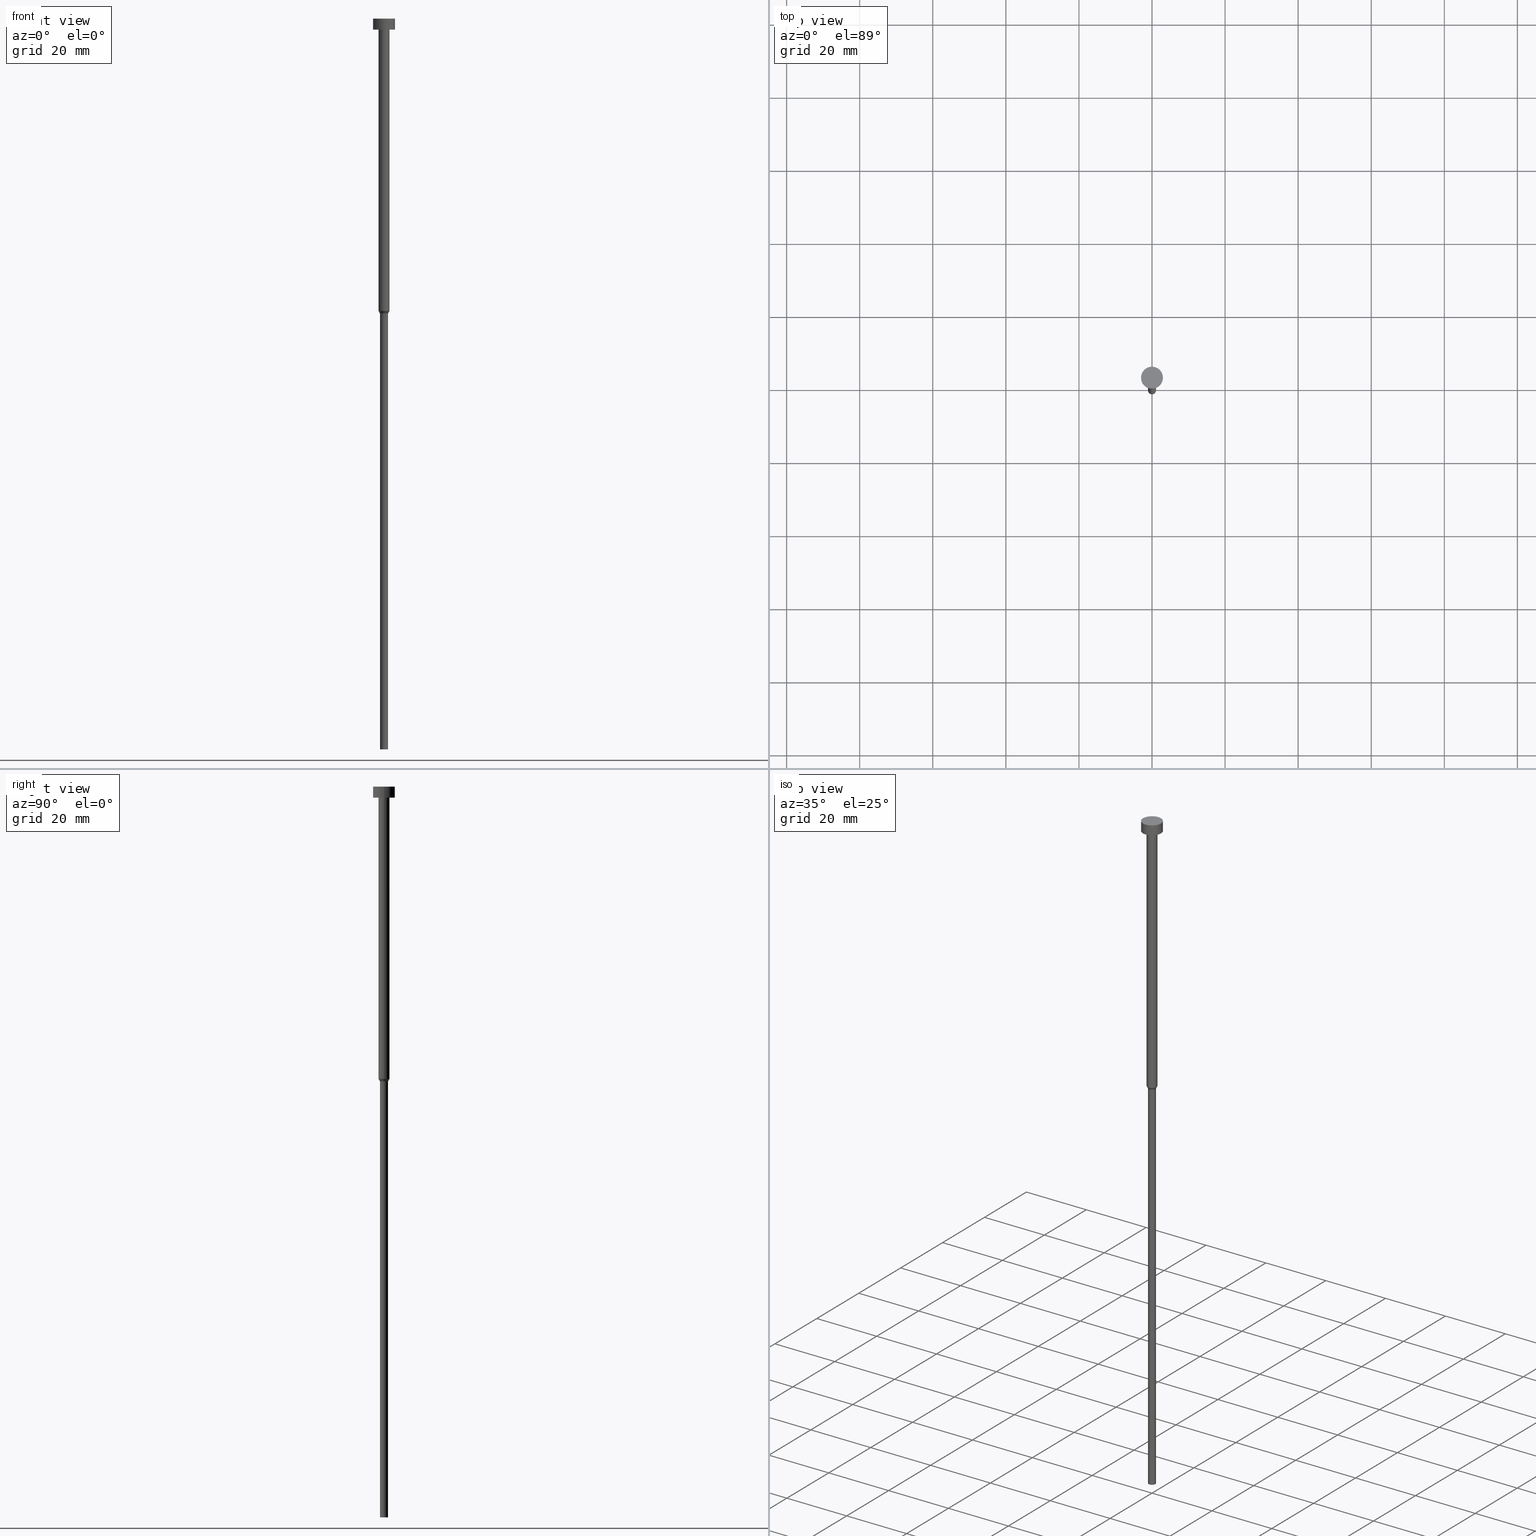
[diagram: canonical four-view strip — front | top / right | iso, engineering-drawing reading convention]
A machine part, canonical four-view strip (front | top / right | iso — engineering-drawing reading convention). The complete STEP part file that produces these views, byte-faithful:
ISO-10303-21;
HEADER;
FILE_DESCRIPTION (( 'STEP AP203' ),
    '1' );
FILE_NAME ('a2e5.STEP',
    '2023-02-13T09:03:09',
    ( '' ),
    ( '' ),
    'SwSTEP 2.0',
    'SolidWorks 2019',
    '' );
FILE_SCHEMA (( 'CONFIG_CONTROL_DESIGN' ));
ENDSEC;

DATA;
#1 = CIRCLE ( 'NONE', #33, 1.500000000000000000 ) ;
#2 = DESIGN_CONTEXT ( 'detailed design', #47, 'design' ) ;
#3 = CIRCLE ( 'NONE', #343, 1.500000000000000000 ) ;
#4 = DIRECTION ( 'NONE',  ( -0.000000000000000000, -0.000000000000000000, 1.000000000000000000 ) ) ;
#5 = FACE_BOUND ( 'NONE', #214, .T. ) ;
#6 = DIRECTION ( 'NONE',  ( -0.000000000000000000, -0.000000000000000000, 1.000000000000000000 ) ) ;
#7 = FACE_OUTER_BOUND ( 'NONE', #10, .T. ) ;
#8 = APPLICATION_PROTOCOL_DEFINITION ( 'international standard', 'config_control_design', 1994, #47 ) ;
#9 = CARTESIAN_POINT ( 'NONE',  ( 0.000000000000000000, 0.000000000000000000, -200.0000000000000000 ) ) ;
#10 = EDGE_LOOP ( 'NONE', ( #240, #185 ) ) ;
#11 = ORIENTED_EDGE ( 'NONE', *, *, #271, .T. ) ;
#12 = AXIS2_PLACEMENT_3D ( 'NONE', #246, #174, #254 ) ;
#13 = DATE_AND_TIME ( #123, #146 ) ;
#14 = EDGE_LOOP ( 'NONE', ( #89, #152, #335, #333 ) ) ;
#15 = PERSON ( 'NEUR�EN�', 'NEUR�EN�', 'NEUR�EN�', ('NEUR�EN�'), ('NEUR�EN�'), ('NEUR�EN�') ) ;
#16 = ORIENTED_EDGE ( 'NONE', *, *, #241, .T. ) ;
#17 = PERSON_AND_ORGANIZATION_ROLE ( 'creator' ) ;
#18 = ORIENTED_EDGE ( 'NONE', *, *, #326, .F. ) ;
#19 = DATE_AND_TIME ( #96, #221 ) ;
#20 = CARTESIAN_POINT ( 'NONE',  ( 0.000000000000000000, 0.000000000000000000, -3.673940397442059868E-16 ) ) ;
#21 = EDGE_CURVE ( 'NONE', #45, #294, #209, .T. ) ;
#22 = APPROVAL_ROLE ( '' ) ;
#23 = ORIENTED_EDGE ( 'NONE', *, *, #322, .F. ) ;
#24 = DIRECTION ( 'NONE',  ( 0.000000000000000000, 0.000000000000000000, -1.000000000000000000 ) ) ;
#25 = AXIS2_PLACEMENT_3D ( 'NONE', #28, #24, #170 ) ;
#26 = AXIS2_PLACEMENT_3D ( 'NONE', #273, #296, #329 ) ;
#27 = CARTESIAN_POINT ( 'NONE',  ( 0.000000000000000000, 0.000000000000000000, -200.0000000000000000 ) ) ;
#28 = CARTESIAN_POINT ( 'NONE',  ( 0.000000000000000000, -3.000000000000000000, -3.000000000000000888 ) ) ;
#29 = DIRECTION ( 'NONE',  ( 1.000000000000000000, 0.000000000000000000, 0.000000000000000000 ) ) ;
#30 = VECTOR ( 'NONE', #132, 1000.000000000000000 ) ;
#31 = AXIS2_PLACEMENT_3D ( 'NONE', #118, #337, #179 ) ;
#32 = DIRECTION ( 'NONE',  ( -0.000000000000000000, -0.000000000000000000, 1.000000000000000000 ) ) ;
#33 = AXIS2_PLACEMENT_3D ( 'NONE', #195, #247, #327 ) ;
#34 = CYLINDRICAL_SURFACE ( 'NONE', #286, 1.500000000000000000 ) ;
#35 = CC_DESIGN_APPROVAL ( #133, ( #142 ) ) ;
#36 = CARTESIAN_POINT ( 'NONE',  ( 0.000000000000000000, 0.000000000000000000, -80.00000000000000000 ) ) ;
#37 = FACE_OUTER_BOUND ( 'NONE', #14, .T. ) ;
#38 = ADVANCED_FACE ( 'NONE', ( #43 ), #163, .T. ) ;
#39 = APPROVAL_PERSON_ORGANIZATION ( #228, #187, #22 ) ;
#40 = PERSON_AND_ORGANIZATION ( #15, #304 ) ;
#41 = LINE ( 'NONE', #341, #210 ) ;
#42 = ORIENTED_EDGE ( 'NONE', *, *, #218, .T. ) ;
#43 = FACE_OUTER_BOUND ( 'NONE', #320, .T. ) ;
#44 = AXIS2_PLACEMENT_3D ( 'NONE', #175, #54, #88 ) ;
#45 = VERTEX_POINT ( 'NONE', #216 ) ;
#46 = LINE ( 'NONE', #258, #161 ) ;
#47 = APPLICATION_CONTEXT ( 'configuration controlled 3d designs of mechanical parts and assemblies' ) ;
#48 = DIRECTION ( 'NONE',  ( 0.5000000000000026645, 0.000000000000000000, 0.8660254037844371533 ) ) ;
#49 = CARTESIAN_POINT ( 'NONE',  ( -3.000000000000000000, 3.673940397442059868E-16, -3.673940397442059868E-16 ) ) ;
#50 = CARTESIAN_POINT ( 'NONE',  ( -3.000000000000000000, 3.673940397442059868E-16, -3.000000000000000888 ) ) ;
#51 = EDGE_CURVE ( 'NONE', #263, #178, #309, .T. ) ;
#52 = LINE ( 'NONE', #78, #243 ) ;
#53 = AXIS2_PLACEMENT_3D ( 'NONE', #9, #276, #225 ) ;
#54 = DIRECTION ( 'NONE',  ( -0.000000000000000000, -0.000000000000000000, 1.000000000000000000 ) ) ;
#55 = APPROVAL ( #232, 'NEUR�EN�' ) ;
#56 = CARTESIAN_POINT ( 'NONE',  ( 0.000000000000000000, 0.000000000000000000, -3.673940397442059868E-16 ) ) ;
#57 = CARTESIAN_POINT ( 'NONE',  ( -1.100000000000000089, 1.347111479062088503E-16, 0.000000000000000000 ) ) ;
#58 = ORIENTED_EDGE ( 'NONE', *, *, #226, .T. ) ;
#59 = PERSON_AND_ORGANIZATION ( #15, #304 ) ;
#60 = ORIENTED_EDGE ( 'NONE', *, *, #266, .T. ) ;
#61 =( NAMED_UNIT ( * ) SI_UNIT ( $, .STERADIAN. ) SOLID_ANGLE_UNIT ( ) );
#62 = EDGE_CURVE ( 'NONE', #106, #160, #336, .T. ) ;
#63 = ORIENTED_EDGE ( 'NONE', *, *, #271, .F. ) ;
#64 = PERSON_AND_ORGANIZATION ( #15, #304 ) ;
#65 = CC_DESIGN_PERSON_AND_ORGANIZATION_ASSIGNMENT ( #40, #17, ( #142 ) ) ;
#66 = AXIS2_PLACEMENT_3D ( 'NONE', #316, #68, #100 ) ;
#67 = SHAPE_DEFINITION_REPRESENTATION ( #147, #306 ) ;
#68 = DIRECTION ( 'NONE',  ( -0.000000000000000000, -0.000000000000000000, 1.000000000000000000 ) ) ;
#69 = DATE_TIME_ROLE ( 'creation_date' ) ;
#70 = EDGE_LOOP ( 'NONE', ( #102, #281 ) ) ;
#71 = ORIENTED_EDGE ( 'NONE', *, *, #135, .F. ) ;
#72 = EDGE_CURVE ( 'NONE', #294, #347, #165, .T. ) ;
#73 = DIRECTION ( 'NONE',  ( -0.000000000000000000, -0.000000000000000000, 1.000000000000000000 ) ) ;
#74 = CONICAL_SURFACE ( 'NONE', #31, 1.500000000000000000, 0.5235987755983019243 ) ;
#75 = CARTESIAN_POINT ( 'NONE',  ( 0.000000000000000000, 0.000000000000000000, 0.000000000000000000 ) ) ;
#76 = EDGE_CURVE ( 'NONE', #207, #319, #46, .T. ) ;
#77 = CARTESIAN_POINT ( 'NONE',  ( 0.000000000000000000, 0.000000000000000000, -3.000000000000000888 ) ) ;
#78 = CARTESIAN_POINT ( 'NONE',  ( 1.500000000000000000, 0.000000000000000000, -80.00000000000000000 ) ) ;
#79 = CIRCLE ( 'NONE', #173, 1.100000000000000089 ) ;
#80 = CYLINDRICAL_SURFACE ( 'NONE', #136, 1.100000000000000089 ) ;
#81 = MANIFOLD_SOLID_BREP ( 'Rotovat1', #153 ) ;
#82 = CC_DESIGN_PERSON_AND_ORGANIZATION_ASSIGNMENT ( #237, #101, ( #128 ) ) ;
#83 = DIRECTION ( 'NONE',  ( -0.000000000000000000, -0.000000000000000000, 1.000000000000000000 ) ) ;
#84 = PLANE ( 'NONE',  #25 ) ;
#85 = CC_DESIGN_APPROVAL ( #55, ( #128 ) ) ;
#86 = MECHANICAL_CONTEXT ( 'NONE', #282, 'mechanical' ) ;
#87 = ORIENTED_EDGE ( 'NONE', *, *, #322, .T. ) ;
#88 = DIRECTION ( 'NONE',  ( 1.000000000000000000, 0.000000000000000000, 0.000000000000000000 ) ) ;
#89 = ORIENTED_EDGE ( 'NONE', *, *, #325, .T. ) ;
#90 = CARTESIAN_POINT ( 'NONE',  ( -1.500000000000000000, 1.836970198721029934E-16, -3.000000000000000888 ) ) ;
#91 = ORIENTED_EDGE ( 'NONE', *, *, #145, .T. ) ;
#92 = AXIS2_PLACEMENT_3D ( 'NONE', #77, #4, #140 ) ;
#93 = AXIS2_PLACEMENT_3D ( 'NONE', #36, #6, #201 ) ;
#94 = EDGE_CURVE ( 'NONE', #222, #347, #199, .T. ) ;
#95 = CARTESIAN_POINT ( 'NONE',  ( 0.000000000000000000, 0.000000000000000000, -80.00000000000000000 ) ) ;
#96 = CALENDAR_DATE ( 2023, 13, 2 ) ;
#97 = ORIENTED_EDGE ( 'NONE', *, *, #117, .T. ) ;
#98 = COORDINATED_UNIVERSAL_TIME_OFFSET ( 1, 0, .AHEAD. ) ;
#99 = AXIS2_PLACEMENT_3D ( 'NONE', #250, #198, #138 ) ;
#100 = DIRECTION ( 'NONE',  ( 1.000000000000000000, 0.000000000000000000, 0.000000000000000000 ) ) ;
#101 = PERSON_AND_ORGANIZATION_ROLE ( 'classification_officer' ) ;
#102 = ORIENTED_EDGE ( 'NONE', *, *, #51, .T. ) ;
#103 = ORIENTED_EDGE ( 'NONE', *, *, #325, .F. ) ;
#104 = CC_DESIGN_PERSON_AND_ORGANIZATION_ASSIGNMENT ( #130, #157, ( #142 ) ) ;
#105 = DATE_AND_TIME ( #181, #204 ) ;
#106 = VERTEX_POINT ( 'NONE', #182 ) ;
#107 = CARTESIAN_POINT ( 'NONE',  ( 0.000000000000000000, 0.000000000000000000, 0.000000000000000000 ) ) ;
#108 = FACE_OUTER_BOUND ( 'NONE', #256, .T. ) ;
#109 = CARTESIAN_POINT ( 'NONE',  ( 1.500000000000000000, 0.000000000000000000, -3.000000000000000888 ) ) ;
#110 = PRODUCT_DEFINITION ( 'NEZN�M�', '', #142, #2 ) ;
#111 = CIRCLE ( 'NONE', #154, 1.100000000000000089 ) ;
#112 = CYLINDRICAL_SURFACE ( 'NONE', #26, 1.100000000000000089 ) ;
#113 = CARTESIAN_POINT ( 'NONE',  ( 1.500000000000000000, 0.000000000000000000, -80.00000000000000000 ) ) ;
#114 = PLANE ( 'NONE',  #53 ) ;
#115 = AXIS2_PLACEMENT_3D ( 'NONE', #56, #308, #119 ) ;
#116 = DIRECTION ( 'NONE',  ( 1.000000000000000000, 0.000000000000000000, 0.000000000000000000 ) ) ;
#117 = EDGE_CURVE ( 'NONE', #150, #222, #41, .T. ) ;
#118 = CARTESIAN_POINT ( 'NONE',  ( 0.000000000000000000, 0.000000000000000000, -80.00000000000000000 ) ) ;
#119 = DIRECTION ( 'NONE',  ( 1.000000000000000000, 0.000000000000000000, 0.000000000000000000 ) ) ;
#120 = ORIENTED_EDGE ( 'NONE', *, *, #76, .T. ) ;
#121 = CARTESIAN_POINT ( 'NONE',  ( 0.000000000000000000, 0.000000000000000000, 0.000000000000000000 ) ) ;
#122 = ORIENTED_EDGE ( 'NONE', *, *, #21, .T. ) ;
#123 = CALENDAR_DATE ( 2023, 13, 2 ) ;
#124 = VERTEX_POINT ( 'NONE', #192 ) ;
#125 = CALENDAR_DATE ( 2023, 13, 2 ) ;
#126 = DIRECTION ( 'NONE',  ( -0.000000000000000000, -0.000000000000000000, 1.000000000000000000 ) ) ;
#127 = ADVANCED_FACE ( 'NONE', ( #108 ), #270, .T. ) ;
#128 = SECURITY_CLASSIFICATION ( '', '', #208 ) ;
#129 = ORIENTED_EDGE ( 'NONE', *, *, #139, .T. ) ;
#130 = PERSON_AND_ORGANIZATION ( #15, #304 ) ;
#131 = CARTESIAN_POINT ( 'NONE',  ( 0.000000000000000000, 0.000000000000000000, -3.000000000000000888 ) ) ;
#132 = DIRECTION ( 'NONE',  ( -0.000000000000000000, -0.000000000000000000, 1.000000000000000000 ) ) ;
#133 = APPROVAL ( #262, 'NEUR�EN�' ) ;
#134 = FACE_OUTER_BOUND ( 'NONE', #70, .T. ) ;
#135 = EDGE_CURVE ( 'NONE', #160, #106, #191, .T. ) ;
#136 = AXIS2_PLACEMENT_3D ( 'NONE', #107, #141, #269 ) ;
#137 = CIRCLE ( 'NONE', #115, 3.000000000000000000 ) ;
#138 = DIRECTION ( 'NONE',  ( 1.000000000000000000, 0.000000000000000000, 0.000000000000000000 ) ) ;
#139 = EDGE_CURVE ( 'NONE', #347, #222, #1, .T. ) ;
#140 = DIRECTION ( 'NONE',  ( 1.000000000000000000, 0.000000000000000000, 0.000000000000000000 ) ) ;
#141 = DIRECTION ( 'NONE',  ( -0.000000000000000000, -0.000000000000000000, 1.000000000000000000 ) ) ;
#142 = PRODUCT_DEFINITION_FORMATION_WITH_SPECIFIED_SOURCE ( 'LIBOVOLN�', '', #156, .NOT_KNOWN. ) ;
#143 = FACE_OUTER_BOUND ( 'NONE', #213, .T. ) ;
#144 = DIRECTION ( 'NONE',  ( 1.000000000000000000, 0.000000000000000000, 0.000000000000000000 ) ) ;
#145 = EDGE_CURVE ( 'NONE', #160, #178, #300, .T. ) ;
#146 = LOCAL_TIME ( 10, 3, 9.000000000000000000, #290 ) ;
#147 = PRODUCT_DEFINITION_SHAPE ( 'NONE', 'NONE',  #110 ) ;
#148 = ADVANCED_FACE ( 'NONE', ( #5, #143 ), #84, .T. ) ;
#149 = DIRECTION ( 'NONE',  ( -0.000000000000000000, -0.000000000000000000, 1.000000000000000000 ) ) ;
#150 = VERTEX_POINT ( 'NONE', #113 ) ;
#151 = DIRECTION ( 'NONE',  ( -0.000000000000000000, -0.000000000000000000, 1.000000000000000000 ) ) ;
#152 = ORIENTED_EDGE ( 'NONE', *, *, #72, .T. ) ;
#153 = CLOSED_SHELL ( 'NONE', ( #38, #307, #344, #227, #354, #236, #302, #277, #148, #127, #168 ) ) ;
#154 = AXIS2_PLACEMENT_3D ( 'NONE', #27, #32, #217 ) ;
#155 = EDGE_LOOP ( 'NONE', ( #11, #122, #103, #238 ) ) ;
#156 = PRODUCT ( 'a2e5', 'a2e5', '', ( #86 ) ) ;
#157 = PERSON_AND_ORGANIZATION_ROLE ( 'design_supplier' ) ;
#158 = ORIENTED_EDGE ( 'NONE', *, *, #76, .F. ) ;
#159 = PERSON_AND_ORGANIZATION ( #15, #304 ) ;
#160 = VERTEX_POINT ( 'NONE', #50 ) ;
#161 = VECTOR ( 'NONE', #233, 1000.000000000000000 ) ;
#162 = COORDINATED_UNIVERSAL_TIME_OFFSET ( 1, 0, .AHEAD. ) ;
#163 = CYLINDRICAL_SURFACE ( 'NONE', #242, 3.000000000000000000 ) ;
#164 = PERSON_AND_ORGANIZATION ( #15, #304 ) ;
#165 = LINE ( 'NONE', #267, #30 ) ;
#166 = CARTESIAN_POINT ( 'NONE',  ( 1.100000000000000089, 0.000000000000000000, -200.0000000000000000 ) ) ;
#167 = CARTESIAN_POINT ( 'NONE',  ( 3.000000000000000000, 0.000000000000000000, 0.000000000000000000 ) ) ;
#168 = ADVANCED_FACE ( 'NONE', ( #134 ), #190, .T. ) ;
#169 = AXIS2_PLACEMENT_3D ( 'NONE', #121, #230, #338 ) ;
#170 = DIRECTION ( 'NONE',  ( -1.000000000000000000, 0.000000000000000000, -0.000000000000000000 ) ) ;
#171 = FACE_OUTER_BOUND ( 'NONE', #212, .T. ) ;
#172 = DIRECTION ( 'NONE',  ( 1.000000000000000000, 0.000000000000000000, 0.000000000000000000 ) ) ;
#173 = AXIS2_PLACEMENT_3D ( 'NONE', #196, #301, #172 ) ;
#174 = DIRECTION ( 'NONE',  ( -0.000000000000000000, -0.000000000000000000, 1.000000000000000000 ) ) ;
#175 = CARTESIAN_POINT ( 'NONE',  ( 0.000000000000000000, 0.000000000000000000, -80.00000000000000000 ) ) ;
#176 = ORIENTED_EDGE ( 'NONE', *, *, #135, .T. ) ;
#177 = CC_DESIGN_PERSON_AND_ORGANIZATION_ASSIGNMENT ( #59, #200, ( #156 ) ) ;
#178 = VERTEX_POINT ( 'NONE', #49 ) ;
#179 = DIRECTION ( 'NONE',  ( 1.000000000000000000, 0.000000000000000000, 0.000000000000000000 ) ) ;
#180 = APPROVAL_PERSON_ORGANIZATION ( #164, #55, #314 ) ;
#181 = CALENDAR_DATE ( 2023, 13, 2 ) ;
#182 = CARTESIAN_POINT ( 'NONE',  ( 3.000000000000000000, 0.000000000000000000, -3.000000000000000888 ) ) ;
#183 = COORDINATED_UNIVERSAL_TIME_OFFSET ( 1, 0, .AHEAD. ) ;
#184 = ORIENTED_EDGE ( 'NONE', *, *, #145, .F. ) ;
#185 = ORIENTED_EDGE ( 'NONE', *, *, #266, .F. ) ;
#186 = AXIS2_PLACEMENT_3D ( 'NONE', #20, #295, #289 ) ;
#187 = APPROVAL ( #334, 'NEUR�EN�' ) ;
#188 = DIRECTION ( 'NONE',  ( 1.000000000000000000, 0.000000000000000000, 0.000000000000000000 ) ) ;
#189 = ORIENTED_EDGE ( 'NONE', *, *, #51, .F. ) ;
#190 = PLANE ( 'NONE',  #297 ) ;
#191 = CIRCLE ( 'NONE', #92, 3.000000000000000000 ) ;
#192 = CARTESIAN_POINT ( 'NONE',  ( -1.100000000000000089, 1.347111479062088503E-16, -200.0000000000000000 ) ) ;
#193 = AXIS2_PLACEMENT_3D ( 'NONE', #268, #274, #245 ) ;
#194 = APPROVAL_PERSON_ORGANIZATION ( #159, #133, #339 ) ;
#195 = CARTESIAN_POINT ( 'NONE',  ( 0.000000000000000000, 0.000000000000000000, -3.000000000000000888 ) ) ;
#196 = CARTESIAN_POINT ( 'NONE',  ( 0.000000000000000000, 0.000000000000000000, -200.0000000000000000 ) ) ;
#197 = CC_DESIGN_DATE_AND_TIME_ASSIGNMENT ( #105, #69, ( #110 ) ) ;
#198 = DIRECTION ( 'NONE',  ( -0.000000000000000000, -0.000000000000000000, 1.000000000000000000 ) ) ;
#199 = CIRCLE ( 'NONE', #66, 1.500000000000000000 ) ;
#200 = PERSON_AND_ORGANIZATION_ROLE ( 'design_owner' ) ;
#201 = DIRECTION ( 'NONE',  ( 1.000000000000000000, 0.000000000000000000, 0.000000000000000000 ) ) ;
#202 = ORIENTED_EDGE ( 'NONE', *, *, #226, .F. ) ;
#203 =( LENGTH_UNIT ( ) NAMED_UNIT ( * ) SI_UNIT ( .MILLI., .METRE. ) );
#204 = LOCAL_TIME ( 10, 3, 9.000000000000000000, #239 ) ;
#205 = ORIENTED_EDGE ( 'NONE', *, *, #62, .T. ) ;
#206 = LINE ( 'NONE', #57, #317 ) ;
#207 = VERTEX_POINT ( 'NONE', #166 ) ;
#208 = SECURITY_CLASSIFICATION_LEVEL ( 'unclassified' ) ;
#209 = LINE ( 'NONE', #291, #349 ) ;
#210 = VECTOR ( 'NONE', #330, 1000.000000000000000 ) ;
#211 = DATE_AND_TIME ( #125, #293 ) ;
#212 = EDGE_LOOP ( 'NONE', ( #18, #60, #120, #278 ) ) ;
#213 = EDGE_LOOP ( 'NONE', ( #312, #71 ) ) ;
#214 = EDGE_LOOP ( 'NONE', ( #234, #129 ) ) ;
#215 = CIRCLE ( 'NONE', #93, 1.500000000000000000 ) ;
#216 = CARTESIAN_POINT ( 'NONE',  ( -1.100000000000000089, 1.347111479062088503E-16, -80.69282032302754715 ) ) ;
#217 = DIRECTION ( 'NONE',  ( 1.000000000000000000, 0.000000000000000000, 0.000000000000000000 ) ) ;
#218 = EDGE_CURVE ( 'NONE', #319, #150, #52, .T. ) ;
#219 = DIRECTION ( 'NONE',  ( 0.000000000000000000, -0.000000000000000000, 1.000000000000000000 ) ) ;
#220 = LINE ( 'NONE', #167, #342 ) ;
#221 = LOCAL_TIME ( 10, 3, 9.000000000000000000, #162 ) ;
#222 = VERTEX_POINT ( 'NONE', #109 ) ;
#223 = DIRECTION ( 'NONE',  ( 1.000000000000000000, 0.000000000000000000, 0.000000000000000000 ) ) ;
#224 = CYLINDRICAL_SURFACE ( 'NONE', #12, 1.500000000000000000 ) ;
#225 = DIRECTION ( 'NONE',  ( -1.000000000000000000, 0.000000000000000000, -0.000000000000000000 ) ) ;
#226 = EDGE_CURVE ( 'NONE', #106, #263, #220, .T. ) ;
#227 = ADVANCED_FACE ( 'NONE', ( #353 ), #80, .T. ) ;
#228 = PERSON_AND_ORGANIZATION ( #15, #304 ) ;
#229 = FACE_OUTER_BOUND ( 'NONE', #155, .T. ) ;
#230 = DIRECTION ( 'NONE',  ( 0.000000000000000000, 0.000000000000000000, 1.000000000000000000 ) ) ;
#231 = ORIENTED_EDGE ( 'NONE', *, *, #313, .F. ) ;
#232 = APPROVAL_STATUS ( 'not_yet_approved' ) ;
#233 = DIRECTION ( 'NONE',  ( -0.000000000000000000, -0.000000000000000000, 1.000000000000000000 ) ) ;
#234 = ORIENTED_EDGE ( 'NONE', *, *, #94, .T. ) ;
#235 = EDGE_CURVE ( 'NONE', #45, #319, #285, .T. ) ;
#236 = ADVANCED_FACE ( 'NONE', ( #171 ), #112, .T. ) ;
#237 = PERSON_AND_ORGANIZATION ( #15, #304 ) ;
#238 = ORIENTED_EDGE ( 'NONE', *, *, #218, .F. ) ;
#239 = COORDINATED_UNIVERSAL_TIME_OFFSET ( 1, 0, .AHEAD. ) ;
#240 = ORIENTED_EDGE ( 'NONE', *, *, #241, .F. ) ;
#241 = EDGE_CURVE ( 'NONE', #207, #124, #79, .T. ) ;
#242 = AXIS2_PLACEMENT_3D ( 'NONE', #75, #126, #265 ) ;
#243 = VECTOR ( 'NONE', #48, 1000.000000000000000 ) ;
#244 = CC_DESIGN_APPROVAL ( #187, ( #110 ) ) ;
#245 = DIRECTION ( 'NONE',  ( 1.000000000000000000, 0.000000000000000000, 0.000000000000000000 ) ) ;
#246 = CARTESIAN_POINT ( 'NONE',  ( 0.000000000000000000, 0.000000000000000000, 0.000000000000000000 ) ) ;
#247 = DIRECTION ( 'NONE',  ( -0.000000000000000000, -0.000000000000000000, 1.000000000000000000 ) ) ;
#248 = CARTESIAN_POINT ( 'NONE',  ( 0.000000000000000000, 0.000000000000000000, 0.000000000000000000 ) ) ;
#249 = LOCAL_TIME ( 10, 3, 9.000000000000000000, #183 ) ;
#250 = CARTESIAN_POINT ( 'NONE',  ( 0.000000000000000000, 0.000000000000000000, -80.69282032302754715 ) ) ;
#251 = CARTESIAN_POINT ( 'NONE',  ( 1.100000000000000089, 0.000000000000000000, -80.69282032302754715 ) ) ;
#252 = CC_DESIGN_PERSON_AND_ORGANIZATION_ASSIGNMENT ( #64, #346, ( #110 ) ) ;
#253 = AXIS2_PLACEMENT_3D ( 'NONE', #248, #83, #223 ) ;
#254 = DIRECTION ( 'NONE',  ( 1.000000000000000000, 0.000000000000000000, 0.000000000000000000 ) ) ;
#255 = CARTESIAN_POINT ( 'NONE',  ( 0.000000000000000000, 0.000000000000000000, 0.000000000000000000 ) ) ;
#256 = EDGE_LOOP ( 'NONE', ( #184, #176, #58, #231 ) ) ;
#257 = ORIENTED_EDGE ( 'NONE', *, *, #72, .F. ) ;
#258 = CARTESIAN_POINT ( 'NONE',  ( 1.100000000000000089, 0.000000000000000000, 0.000000000000000000 ) ) ;
#259 = DATE_AND_TIME ( #284, #249 ) ;
#260 = CC_DESIGN_DATE_AND_TIME_ASSIGNMENT ( #211, #315, ( #128 ) ) ;
#261 = ORIENTED_EDGE ( 'NONE', *, *, #326, .T. ) ;
#262 = APPROVAL_STATUS ( 'not_yet_approved' ) ;
#263 = VERTEX_POINT ( 'NONE', #303 ) ;
#264 = APPROVAL_DATE_TIME ( #19, #133 ) ;
#265 = DIRECTION ( 'NONE',  ( 1.000000000000000000, 0.000000000000000000, 0.000000000000000000 ) ) ;
#266 = EDGE_CURVE ( 'NONE', #124, #207, #111, .T. ) ;
#267 = CARTESIAN_POINT ( 'NONE',  ( -1.500000000000000000, 1.836970198721029934E-16, 0.000000000000000000 ) ) ;
#268 = CARTESIAN_POINT ( 'NONE',  ( 0.000000000000000000, 0.000000000000000000, -80.69282032302754715 ) ) ;
#269 = DIRECTION ( 'NONE',  ( 1.000000000000000000, 0.000000000000000000, 0.000000000000000000 ) ) ;
#270 = CYLINDRICAL_SURFACE ( 'NONE', #253, 3.000000000000000000 ) ;
#271 = EDGE_CURVE ( 'NONE', #319, #45, #350, .T. ) ;
#272 = UNCERTAINTY_MEASURE_WITH_UNIT (LENGTH_MEASURE( 1.000000000000000082E-05 ), #203, 'distance_accuracy_value', 'NONE');
#273 = CARTESIAN_POINT ( 'NONE',  ( 0.000000000000000000, 0.000000000000000000, 0.000000000000000000 ) ) ;
#274 = DIRECTION ( 'NONE',  ( -0.000000000000000000, -0.000000000000000000, 1.000000000000000000 ) ) ;
#275 =( GEOMETRIC_REPRESENTATION_CONTEXT ( 3 ) GLOBAL_UNCERTAINTY_ASSIGNED_CONTEXT ( ( #272 ) ) GLOBAL_UNIT_ASSIGNED_CONTEXT ( ( #203, #311, #61 ) ) REPRESENTATION_CONTEXT ( 'NONE', 'WORKASPACE' ) );
#276 = DIRECTION ( 'NONE',  ( 0.000000000000000000, 0.000000000000000000, -1.000000000000000000 ) ) ;
#277 = ADVANCED_FACE ( 'NONE', ( #324 ), #224, .T. ) ;
#278 = ORIENTED_EDGE ( 'NONE', *, *, #235, .F. ) ;
#279 = AXIS2_PLACEMENT_3D ( 'NONE', #131, #73, #188 ) ;
#280 = CARTESIAN_POINT ( 'NONE',  ( -1.500000000000000000, 1.836970198721029934E-16, -80.00000000000000000 ) ) ;
#281 = ORIENTED_EDGE ( 'NONE', *, *, #313, .T. ) ;
#282 = APPLICATION_CONTEXT ( 'configuration controlled 3d designs of mechanical parts and assemblies' ) ;
#283 = FACE_OUTER_BOUND ( 'NONE', #310, .T. ) ;
#284 = CALENDAR_DATE ( 2023, 13, 2 ) ;
#285 = CIRCLE ( 'NONE', #193, 1.100000000000000089 ) ;
#286 = AXIS2_PLACEMENT_3D ( 'NONE', #255, #305, #144 ) ;
#287 = DIRECTION ( 'NONE',  ( -0.5000000000000026645, 6.123233995736798083E-17, 0.8660254037844371533 ) ) ;
#288 = APPROVAL_DATE_TIME ( #259, #55 ) ;
#289 = DIRECTION ( 'NONE',  ( 1.000000000000000000, 0.000000000000000000, 0.000000000000000000 ) ) ;
#290 = COORDINATED_UNIVERSAL_TIME_OFFSET ( 1, 0, .AHEAD. ) ;
#291 = CARTESIAN_POINT ( 'NONE',  ( -1.500000000000000000, 1.836970198721029934E-16, -80.00000000000000000 ) ) ;
#292 = VECTOR ( 'NONE', #351, 1000.000000000000000 ) ;
#293 = LOCAL_TIME ( 10, 3, 9.000000000000000000, #98 ) ;
#294 = VERTEX_POINT ( 'NONE', #280 ) ;
#295 = DIRECTION ( 'NONE',  ( -0.000000000000000000, -0.000000000000000000, 1.000000000000000000 ) ) ;
#296 = DIRECTION ( 'NONE',  ( -0.000000000000000000, -0.000000000000000000, 1.000000000000000000 ) ) ;
#297 = AXIS2_PLACEMENT_3D ( 'NONE', #299, #219, #29 ) ;
#298 = CONICAL_SURFACE ( 'NONE', #44, 1.500000000000000000, 0.5235987755983019243 ) ;
#299 = CARTESIAN_POINT ( 'NONE',  ( 0.000000000000000000, 0.000000000000000000, -1.836970198721029934E-16 ) ) ;
#300 = LINE ( 'NONE', #355, #292 ) ;
#301 = DIRECTION ( 'NONE',  ( -0.000000000000000000, -0.000000000000000000, 1.000000000000000000 ) ) ;
#302 = ADVANCED_FACE ( 'NONE', ( #283 ), #74, .T. ) ;
#303 = CARTESIAN_POINT ( 'NONE',  ( 3.000000000000000000, 0.000000000000000000, -3.673940397442059868E-16 ) ) ;
#304 = ORGANIZATION ( 'NEUR�EN�', 'NEUR�EN�', '' ) ;
#305 = DIRECTION ( 'NONE',  ( -0.000000000000000000, -0.000000000000000000, 1.000000000000000000 ) ) ;
#306 = ADVANCED_BREP_SHAPE_REPRESENTATION ( 'a2e5', ( #81, #169 ), #275 ) ;
#307 = ADVANCED_FACE ( 'NONE', ( #37 ), #34, .T. ) ;
#308 = DIRECTION ( 'NONE',  ( -0.000000000000000000, -0.000000000000000000, 1.000000000000000000 ) ) ;
#309 = CIRCLE ( 'NONE', #186, 3.000000000000000000 ) ;
#310 = EDGE_LOOP ( 'NONE', ( #345, #348, #42, #23 ) ) ;
#311 =( NAMED_UNIT ( * ) PLANE_ANGLE_UNIT ( ) SI_UNIT ( $, .RADIAN. ) );
#312 = ORIENTED_EDGE ( 'NONE', *, *, #62, .F. ) ;
#313 = EDGE_CURVE ( 'NONE', #178, #263, #137, .T. ) ;
#314 = APPROVAL_ROLE ( '' ) ;
#315 = DATE_TIME_ROLE ( 'classification_date' ) ;
#316 = CARTESIAN_POINT ( 'NONE',  ( 0.000000000000000000, 0.000000000000000000, -3.000000000000000888 ) ) ;
#317 = VECTOR ( 'NONE', #151, 1000.000000000000000 ) ;
#318 = APPROVAL_DATE_TIME ( #13, #187 ) ;
#319 = VERTEX_POINT ( 'NONE', #251 ) ;
#320 = EDGE_LOOP ( 'NONE', ( #205, #91, #189, #202 ) ) ;
#321 = ORIENTED_EDGE ( 'NONE', *, *, #139, .F. ) ;
#322 = EDGE_CURVE ( 'NONE', #294, #150, #3, .T. ) ;
#323 = EDGE_LOOP ( 'NONE', ( #257, #87, #97, #321 ) ) ;
#324 = FACE_OUTER_BOUND ( 'NONE', #323, .T. ) ;
#325 = EDGE_CURVE ( 'NONE', #150, #294, #215, .T. ) ;
#326 = EDGE_CURVE ( 'NONE', #124, #45, #206, .T. ) ;
#327 = DIRECTION ( 'NONE',  ( 1.000000000000000000, 0.000000000000000000, 0.000000000000000000 ) ) ;
#328 = DIRECTION ( 'NONE',  ( -0.000000000000000000, -0.000000000000000000, 1.000000000000000000 ) ) ;
#329 = DIRECTION ( 'NONE',  ( 1.000000000000000000, 0.000000000000000000, 0.000000000000000000 ) ) ;
#330 = DIRECTION ( 'NONE',  ( -0.000000000000000000, -0.000000000000000000, 1.000000000000000000 ) ) ;
#331 = APPLICATION_PROTOCOL_DEFINITION ( 'international standard', 'config_control_design', 1994, #282 ) ;
#332 = CC_DESIGN_SECURITY_CLASSIFICATION ( #128, ( #142 ) ) ;
#333 = ORIENTED_EDGE ( 'NONE', *, *, #117, .F. ) ;
#334 = APPROVAL_STATUS ( 'not_yet_approved' ) ;
#335 = ORIENTED_EDGE ( 'NONE', *, *, #94, .F. ) ;
#336 = CIRCLE ( 'NONE', #279, 3.000000000000000000 ) ;
#337 = DIRECTION ( 'NONE',  ( -0.000000000000000000, -0.000000000000000000, 1.000000000000000000 ) ) ;
#338 = DIRECTION ( 'NONE',  ( 1.000000000000000000, 0.000000000000000000, 0.000000000000000000 ) ) ;
#339 = APPROVAL_ROLE ( '' ) ;
#340 = EDGE_LOOP ( 'NONE', ( #16, #261, #63, #158 ) ) ;
#341 = CARTESIAN_POINT ( 'NONE',  ( 1.500000000000000000, 0.000000000000000000, 0.000000000000000000 ) ) ;
#342 = VECTOR ( 'NONE', #328, 1000.000000000000000 ) ;
#343 = AXIS2_PLACEMENT_3D ( 'NONE', #95, #149, #116 ) ;
#344 = ADVANCED_FACE ( 'NONE', ( #229 ), #298, .T. ) ;
#345 = ORIENTED_EDGE ( 'NONE', *, *, #21, .F. ) ;
#346 = PERSON_AND_ORGANIZATION_ROLE ( 'creator' ) ;
#347 = VERTEX_POINT ( 'NONE', #90 ) ;
#348 = ORIENTED_EDGE ( 'NONE', *, *, #235, .T. ) ;
#349 = VECTOR ( 'NONE', #287, 1000.000000000000000 ) ;
#350 = CIRCLE ( 'NONE', #99, 1.100000000000000089 ) ;
#351 = DIRECTION ( 'NONE',  ( -0.000000000000000000, -0.000000000000000000, 1.000000000000000000 ) ) ;
#352 = PRODUCT_RELATED_PRODUCT_CATEGORY ( 'detail', '', ( #156 ) ) ;
#353 = FACE_OUTER_BOUND ( 'NONE', #340, .T. ) ;
#354 = ADVANCED_FACE ( 'NONE', ( #7 ), #114, .T. ) ;
#355 = CARTESIAN_POINT ( 'NONE',  ( -3.000000000000000000, 3.673940397442059868E-16, 0.000000000000000000 ) ) ;
ENDSEC;
END-ISO-10303-21;
